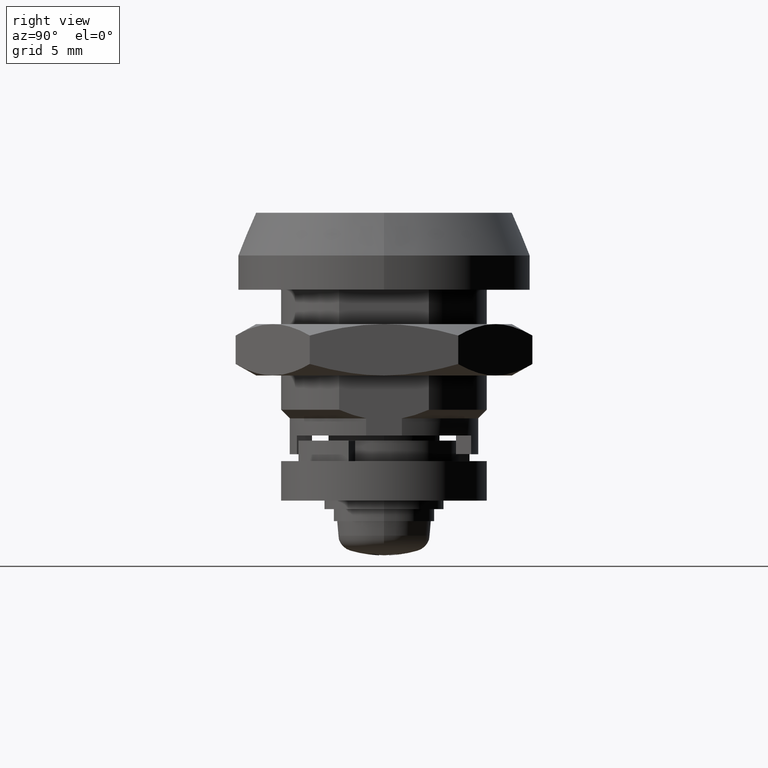
[diagram: clean part render]
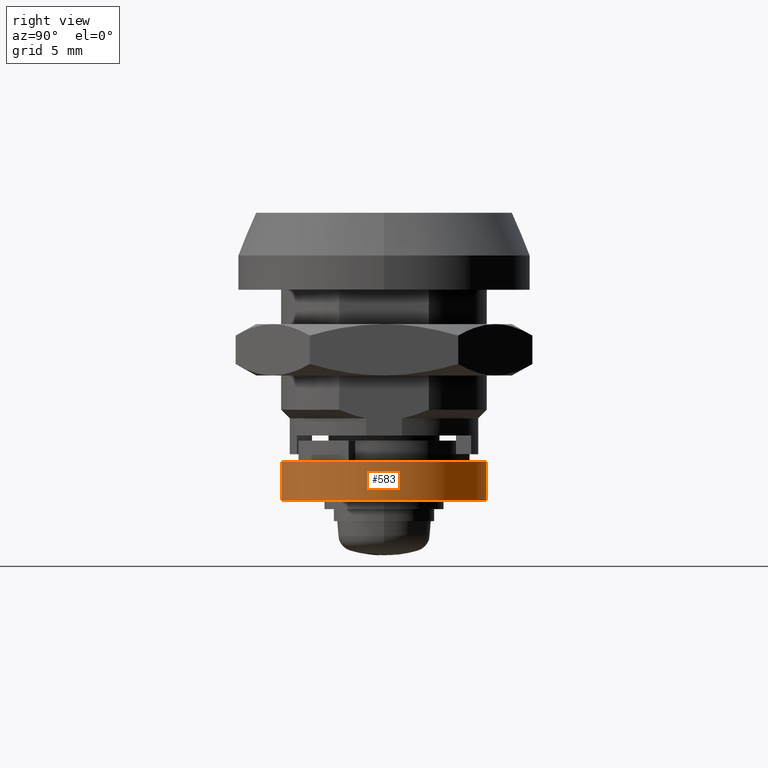
[diagram: same view with one face highlighted and labeled with its STEP entity id]
A machine part, right view. The second image highlights one B-rep face of the part: STEP entity #583.
In plain terms, the highlighted cylindrical surface (partial cylindrical patch) has radius 6 mm, axis along (-0, -0, -1).
Its self-contained STEP definition (entity closure, byte-faithful):
#247 = EDGE_CURVE ( 'NONE', #577, #2670, #884, .T. ) ;
#270 = ORIENTED_EDGE ( 'NONE', *, *, #899, .F. ) ;
#273 = CARTESIAN_POINT ( 'NONE',  ( -1.040834085586084300E-014, -6.000000000000000000, 2.299999999999999800 ) ) ;
#371 = DIRECTION ( 'NONE',  ( -0.0000000000000000000, -0.0000000000000000000, -1.000000000000000000 ) ) ;
#577 = VERTEX_POINT ( 'NONE', #2142 ) ;
#583 = ADVANCED_FACE ( 'NONE', ( #3092 ), #1206, .T. ) ;
#656 = VERTEX_POINT ( 'NONE', #1383 ) ;
#785 = AXIS2_PLACEMENT_3D ( 'NONE', #1833, #4261, #2184 ) ;
#825 = DIRECTION ( 'NONE',  ( -1.000000000000000000, 0.0000000000000000000, 0.0000000000000000000 ) ) ;
#884 = LINE ( 'NONE', #273, #2627 ) ;
#899 = EDGE_CURVE ( 'NONE', #656, #4008, #3816, .T. ) ;
#1012 = EDGE_LOOP ( 'NONE', ( #3089, #270, #3138, #1193 ) ) ;
#1193 = ORIENTED_EDGE ( 'NONE', *, *, #247, .T. ) ;
#1196 = DIRECTION ( 'NONE',  ( -0.0000000000000000000, -0.0000000000000000000, -1.000000000000000000 ) ) ;
#1206 = CYLINDRICAL_SURFACE ( 'NONE', #3671, 6.000000000000000900 ) ;
#1227 = CARTESIAN_POINT ( 'NONE',  ( -1.040834085586084300E-014, 6.000000000000001800, 2.299999999999999800 ) ) ;
#1232 = AXIS2_PLACEMENT_3D ( 'NONE', #1710, #4144, #2064 ) ;
#1263 = VECTOR ( 'NONE', #1196, 1000.000000000000000 ) ;
#1383 = CARTESIAN_POINT ( 'NONE',  ( -1.040834085586084300E-014, 6.000000000000001800, 2.299999999999999800 ) ) ;
#1435 = DIRECTION ( 'NONE',  ( -0.0000000000000000000, -0.0000000000000000000, -1.000000000000000000 ) ) ;
#1710 = CARTESIAN_POINT ( 'NONE',  ( -1.040834085586084300E-014, 0.0000000000000000000, 0.0000000000000000000 ) ) ;
#1758 = CARTESIAN_POINT ( 'NONE',  ( -1.040834085586084300E-014, -6.000000000000000000, 0.0000000000000000000 ) ) ;
#1833 = CARTESIAN_POINT ( 'NONE',  ( -1.040834085586084300E-014, 0.0000000000000000000, 2.299999999999999800 ) ) ;
#2064 = DIRECTION ( 'NONE',  ( 1.000000000000000000, 0.0000000000000000000, 0.0000000000000000000 ) ) ;
#2142 = CARTESIAN_POINT ( 'NONE',  ( -1.040834085586084300E-014, -6.000000000000000000, 2.299999999999999800 ) ) ;
#2165 = CIRCLE ( 'NONE', #1232, 6.000000000000000900 ) ;
#2184 = DIRECTION ( 'NONE',  ( 1.000000000000000000, 0.0000000000000000000, 0.0000000000000000000 ) ) ;
#2600 = CIRCLE ( 'NONE', #785, 6.000000000000000900 ) ;
#2627 = VECTOR ( 'NONE', #1435, 1000.000000000000000 ) ;
#2670 = VERTEX_POINT ( 'NONE', #1758 ) ;
#3082 = EDGE_CURVE ( 'NONE', #577, #656, #2600, .T. ) ;
#3089 = ORIENTED_EDGE ( 'NONE', *, *, #3931, .T. ) ;
#3092 = FACE_OUTER_BOUND ( 'NONE', #1012, .T. ) ;
#3138 = ORIENTED_EDGE ( 'NONE', *, *, #3082, .F. ) ;
#3497 = CARTESIAN_POINT ( 'NONE',  ( -1.040834085586084300E-014, 6.000000000000001800, 0.0000000000000000000 ) ) ;
#3671 = AXIS2_PLACEMENT_3D ( 'NONE', #4165, #371, #825 ) ;
#3816 = LINE ( 'NONE', #1227, #1263 ) ;
#3931 = EDGE_CURVE ( 'NONE', #2670, #4008, #2165, .T. ) ;
#4008 = VERTEX_POINT ( 'NONE', #3497 ) ;
#4144 = DIRECTION ( 'NONE',  ( 0.0000000000000000000, 0.0000000000000000000, 1.000000000000000000 ) ) ;
#4165 = CARTESIAN_POINT ( 'NONE',  ( -1.040834085586084300E-014, 0.0000000000000000000, 2.299999999999999800 ) ) ;
#4261 = DIRECTION ( 'NONE',  ( 0.0000000000000000000, 0.0000000000000000000, 1.000000000000000000 ) ) ;